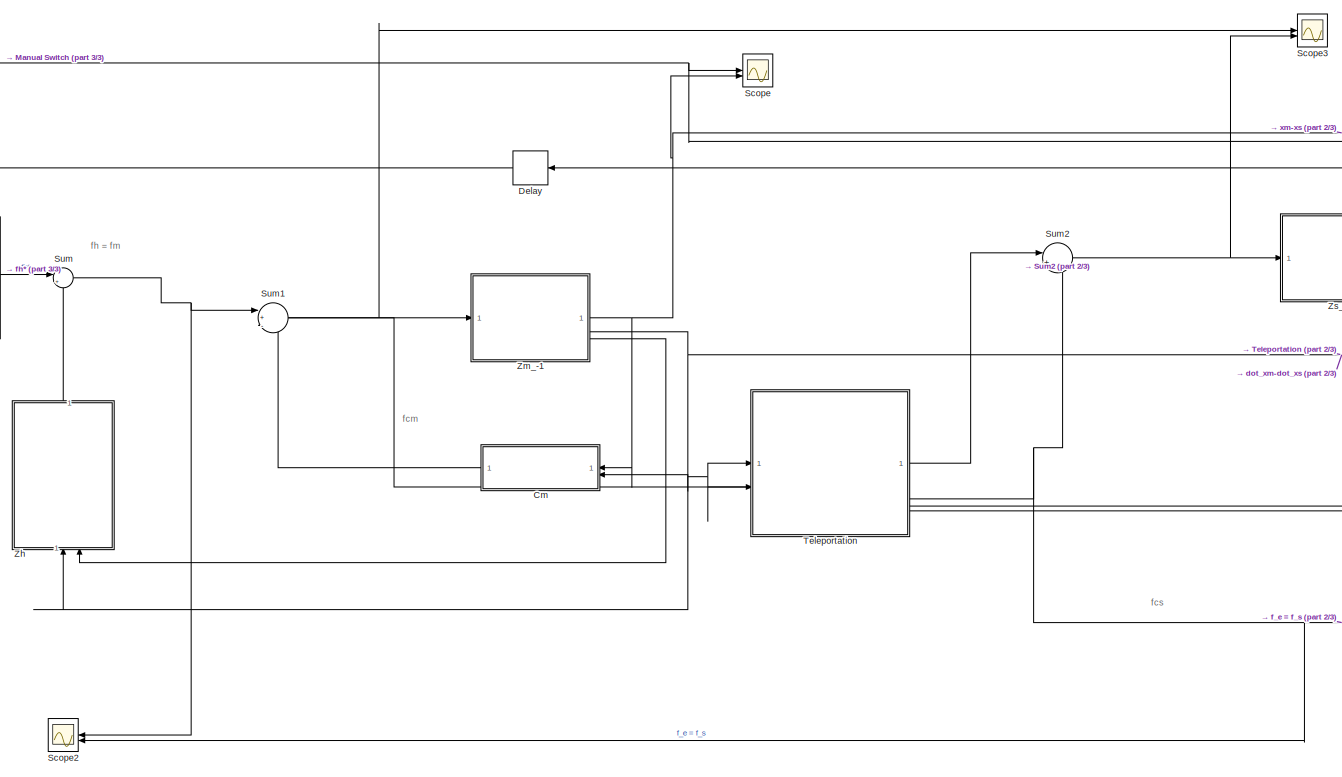
[diagram: root canvas - part 1/3, center side, full height]
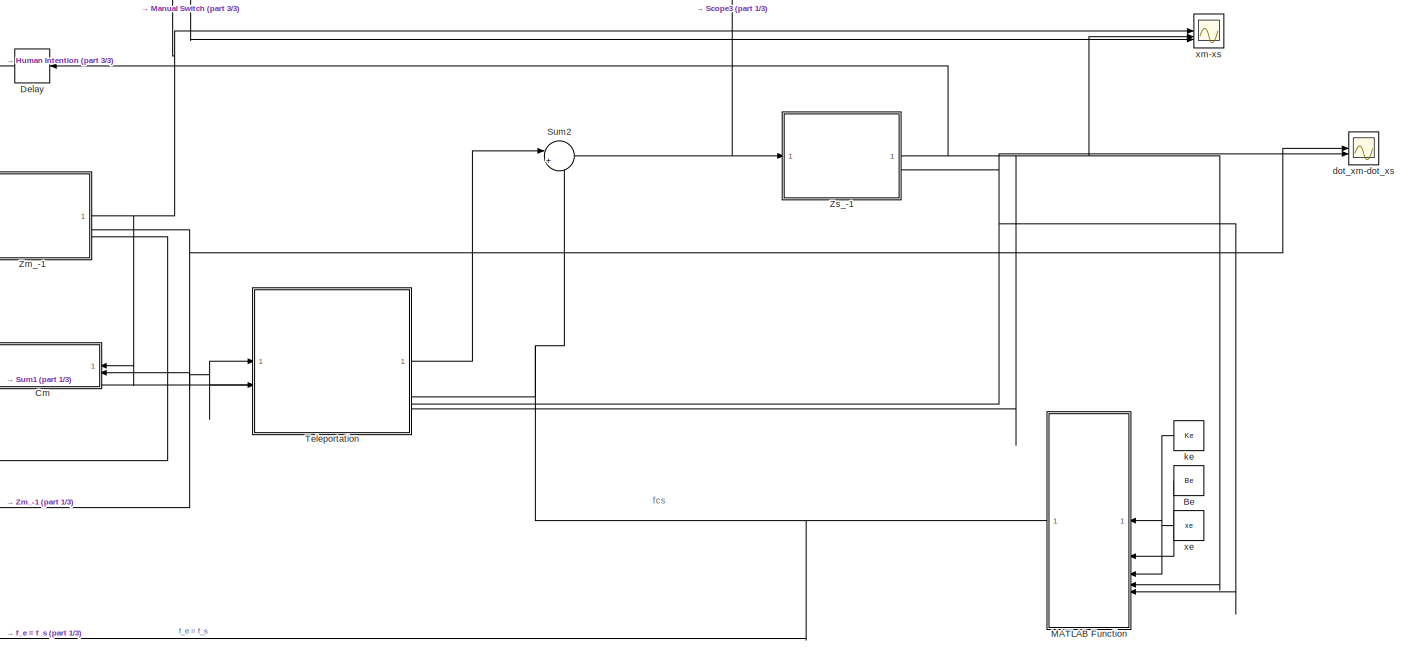
[diagram: root canvas - part 2/3, right side, full height]
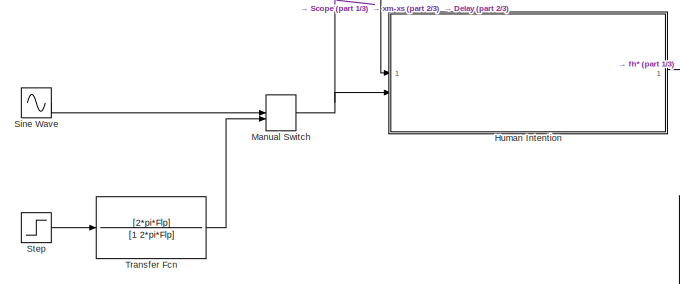
[diagram: root canvas - part 3/3, middle left region]
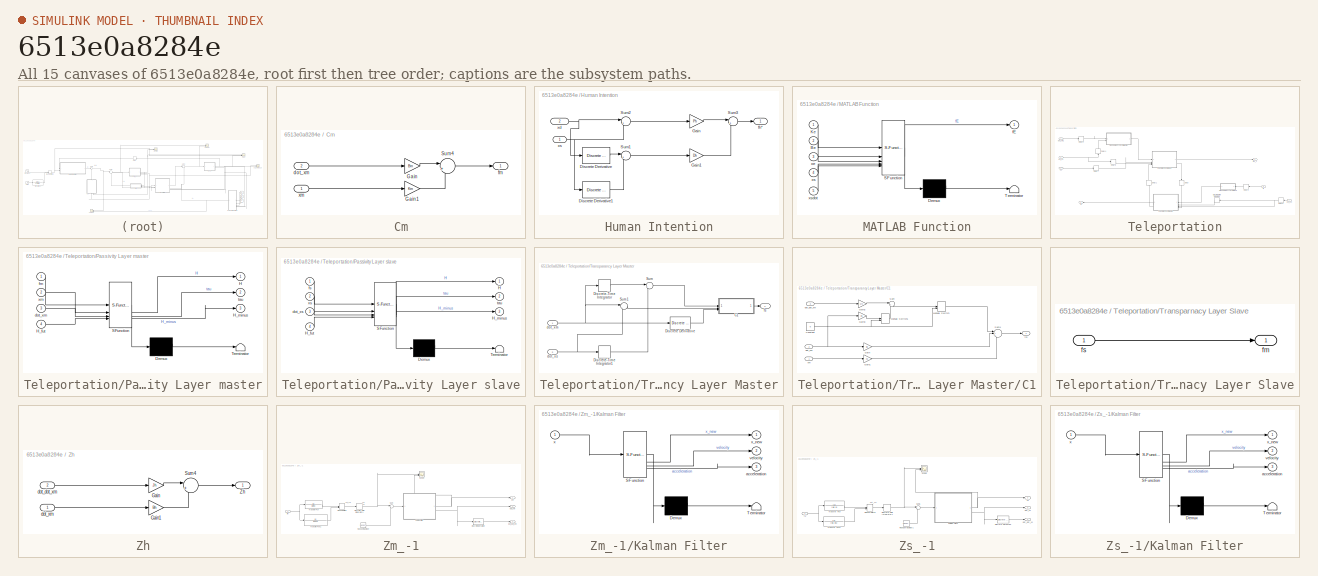
[diagram: thumbnail index - all 15 canvases of the model, root first then tree order]
MODEL slx_6513e0a8284e
KIND model
CONFIG AbsTol = auto
CONFIG EnableMultiTasking = off
CONFIG FixedStep = auto
CONFIG MaxStep = auto
CONFIG MinStep = auto
CONFIG RelTol = 1e-3
CONFIG SampleTimeConstraint = Unconstrained
CONFIG SolverName = VariableStepAuto
CONFIG StartTime = 0.0
CONFIG StopTime = 15
BLOCK [Constant] Be
  Value = Be
BLOCK [SubSystem] Cm
BLOCK [Gain] Cm/Gain
  Gain = Bm
BLOCK [Gain] Cm/Gain1
  Gain = Km
BLOCK [Sum] Cm/Sum4
  Inputs = |++
BLOCK [Inport] Cm/dot_xm
  Port = 2
BLOCK [Outport] Cm/fm
BLOCK [Inport] Cm/xm
BLOCK [Delay] Delay
  DelayLength = delay
  InputPortMap = u0
  SampleTime = Ts
BLOCK [SubSystem] Human Intention
BLOCK [Reference] Human Intention/Discrete Derivative  REF=simulink/Discrete/Discrete Derivative
  SourceBlock = simulink/Discrete/Discrete Derivative
  SourceType = Discrete Derivative
BLOCK [Reference] Human Intention/Discrete Derivative1  REF=simulink/Discrete/Discrete Derivative
  SourceBlock = simulink/Discrete/Discrete Derivative
  SourceType = Discrete Derivative
BLOCK [Gain] Human Intention/Gain
  Gain = Ph
BLOCK [Gain] Human Intention/Gain1
  Gain = Dh
BLOCK [Sum] Human Intention/Sum1
  Inputs = |+-
BLOCK [Sum] Human Intention/Sum2
  Inputs = |+-
BLOCK [Sum] Human Intention/Sum3
  Inputs = |++
BLOCK [Outport] Human Intention/fh*
BLOCK [Inport] Human Intention/xd
  Port = 2
BLOCK [Inport] Human Intention/xs
BLOCK [SubSystem] MATLAB Function
  ErrorFcn = Stateflow.Translate.translate
  PermitHierarchicalResolution = ExplicitOnly
  SFBlockType = MATLAB Function
  TreatAsAtomicUnit = on
BLOCK [Demux] MATLAB Function/ Demux 
  Outputs = 1
BLOCK [S-Function] MATLAB Function/ SFunction 
  EnableBusSupport = on
  FunctionName = sf_sfun
  PortCounts = [5 2]
  SFcnIsStateOwnerBlock = off
  SFunctionDeploymentMode = off
  Tag = Stateflow S-Function 2
BLOCK [Terminator] MATLAB Function/ Terminator 
BLOCK [Inport] MATLAB Function/Be
  Port = 2
BLOCK [Inport] MATLAB Function/Ke
BLOCK [Outport] MATLAB Function/fE
BLOCK [Inport] MATLAB Function/xe
  Port = 3
BLOCK [Inport] MATLAB Function/xs
  Port = 4
BLOCK [Inport] MATLAB Function/xsdot
  Port = 5
BLOCK [ManualSwitch] Manual Switch
BLOCK [Scope] Scope
  Floating = off
  NumInputPorts = 2
  ScopeSpecificationString = Simulink.scopes.TimeScopeBlockCfg('CurrentConfiguration', extmgr.ConfigurationSet(extmgr.Configuration('Core','General UI',true),extmgr.Configuration('Core','Source UI',true),extmgr.Configuration('Sources','WiredSimulink',true),extmgr.Configuration('Visuals','Time Domain',true,'SerializedDisplays',{struct('MinYLimReal','-19.56127','MaxYLimReal','26.05147','YLabelReal','','MinYLimMag','0.00000','Ma...<+1513ch>
BLOCK [Scope] Scope2
  Floating = off
  NumInputPorts = 2
  ScopeSpecificationString = Simulink.scopes.TimeScopeBlockCfg('CurrentConfiguration', extmgr.ConfigurationSet(extmgr.Configuration('Core','General UI',true),extmgr.Configuration('Core','Source UI',true),extmgr.Configuration('Sources','WiredSimulink',true,'DataLoggingVariableName','ScopeData2'),extmgr.Configuration('Visuals','Time Domain',true,'SerializedDisplays',{struct('MinYLimReal','-9069.05231','MaxYLimReal','11720.53116...<+1591ch>
BLOCK [Scope] Scope3
  Floating = off
  NumInputPorts = 2
  ScopeSpecificationString = Simulink.scopes.TimeScopeBlockCfg('CurrentConfiguration', extmgr.ConfigurationSet(extmgr.Configuration('Core','General UI',true),extmgr.Configuration('Core','Source UI',true),extmgr.Configuration('Sources','WiredSimulink',true,'DataLoggingVariableName','ScopeData1'),extmgr.Configuration('Visuals','Time Domain',true,'SerializedDisplays',{struct('MinYLimReal','-20349.54623','MaxYLimReal','7846.10159...<+1574ch>
BLOCK [Sin] Sine Wave
  Amplitude = Amp
  Frequency = 2*pi*Fc
  SampleTime = Ts
BLOCK [Step] Step
  After = Amp
  SampleTime = Ts
  Time = 0.5
BLOCK [Sum] Sum
  Inputs = |+-
BLOCK [Sum] Sum1
  Inputs = |+--
BLOCK [Sum] Sum2
  Inputs = |+-
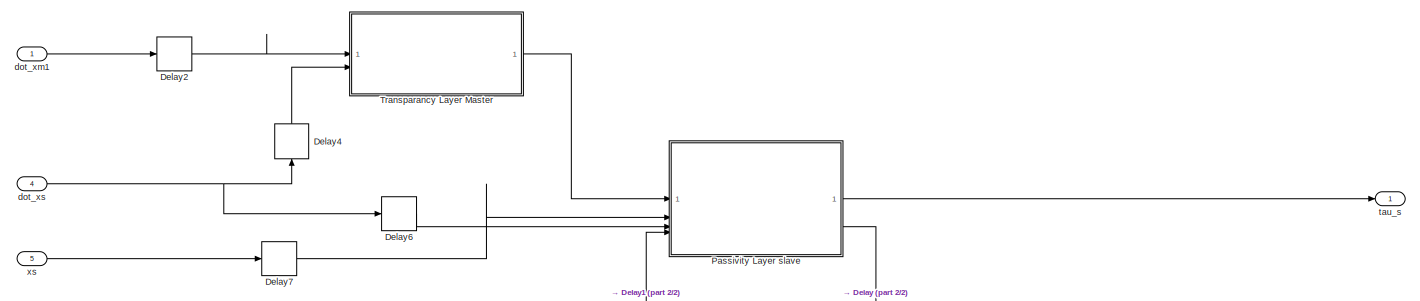
[diagram: Teleportation - part 1/2, full width, top band]
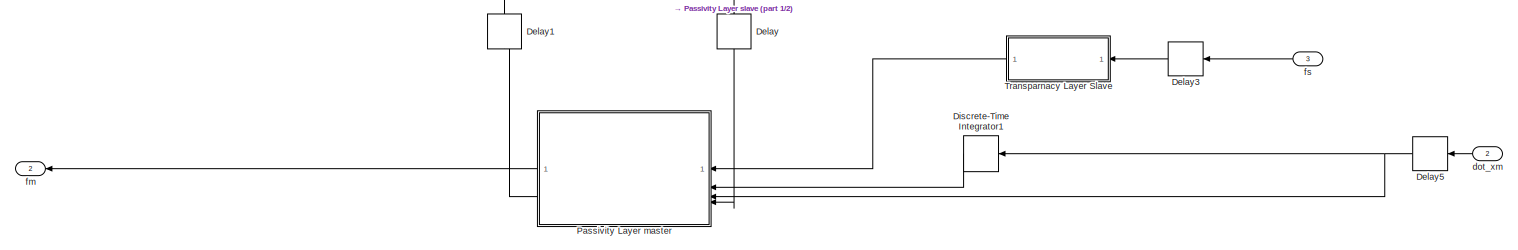
[diagram: Teleportation - part 2/2, full width, bottom band]
BLOCK [SubSystem] Teleportation
  PortSchema = {"entries":[{"content":{"sides":[{"content":{"connectorIds":["Out2","In1","In2"]},"type":"ConnectorPlacement.EquallySpacedRectSide","uuid":"b5f7abc7-c75d-4363-a17a-8f86c90608cd"},{"content":{"connectorIds":["Out1","In3","In4","In5"],"side":"RIGHT"},"type":"ConnectorPlacement.EquallySpacedRectSide","uuid":"2ed87bee-e320-4c73-a1d3-1960a55b558d"},{"content":{"connectorIds":[],"side":"TOP"},"type":"Co...<+271ch>
BLOCK [Delay] Teleportation/Delay
  DelayLength = delay
  InputPortMap = u0
  NameLocation = left
BLOCK [Delay] Teleportation/Delay1
  DelayLength = delay
  InputPortMap = u0
  NameLocation = left
BLOCK [Delay] Teleportation/Delay2
  DelayLength = delay
  InputPortMap = u0
BLOCK [Delay] Teleportation/Delay3
  DelayLength = delay
  InputPortMap = u0
  NameLocation = top
BLOCK [Delay] Teleportation/Delay4
  DelayLength = delay
  InputPortMap = u0
  NameLocation = right
BLOCK [Delay] Teleportation/Delay5
  DelayLength = delay
  InputPortMap = u0
BLOCK [Delay] Teleportation/Delay6
  DelayLength = delay
  InputPortMap = u0
BLOCK [Delay] Teleportation/Delay7
  DelayLength = delay
  InputPortMap = u0
BLOCK [DiscreteIntegrator] Teleportation/Discrete-Time Integrator1
  ICPrevOutput = DiscIntNeverNeededParam
  ICPrevScaledInput = DiscIntNeverNeededParam
  InitialConditionSetting = Auto
  SampleTime = -1
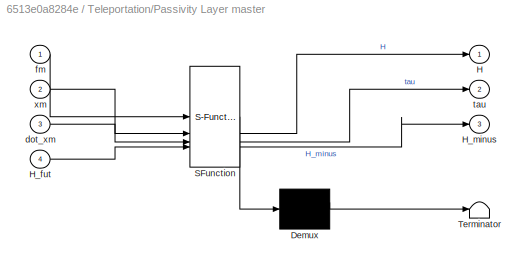
BLOCK [SubSystem] Teleportation/Passivity Layer master
  ErrorFcn = Stateflow.Translate.translate
  LibrarySourceBlock = simulink/User-Defined\nFunctions/MATLAB Function
  PermitHierarchicalResolution = ExplicitOnly
  SFBlockType = MATLAB Function
  TreatAsAtomicUnit = on
BLOCK [Demux] Teleportation/Passivity Layer master/ Demux 
  Outputs = 1
BLOCK [S-Function] Teleportation/Passivity Layer master/ SFunction 
  EnableBusSupport = on
  FunctionName = sf_sfun
  Parameters = Hd,Hm_init,Ts,alpha,beta
  PortCounts = [4 4]
  SFcnIsStateOwnerBlock = off
  SFunctionDeploymentMode = off
  Tag = Stateflow S-Function 4
BLOCK [Terminator] Teleportation/Passivity Layer master/ Terminator 
BLOCK [Outport] Teleportation/Passivity Layer master/H
BLOCK [Inport] Teleportation/Passivity Layer master/H_fut
  Port = 4
BLOCK [Outport] Teleportation/Passivity Layer master/H_minus
  Port = 3
BLOCK [Inport] Teleportation/Passivity Layer master/dot_xm
  Port = 3
BLOCK [Inport] Teleportation/Passivity Layer master/fm
BLOCK [Outport] Teleportation/Passivity Layer master/tau
  Port = 2
BLOCK [Inport] Teleportation/Passivity Layer master/xm
  Port = 2
BLOCK [SubSystem] Teleportation/Passivity Layer slave
  ErrorFcn = Stateflow.Translate.translate
  LibrarySourceBlock = simulink/User-Defined\nFunctions/MATLAB Function
  PermitHierarchicalResolution = ExplicitOnly
  SFBlockType = MATLAB Function
  TreatAsAtomicUnit = on
BLOCK [Demux] Teleportation/Passivity Layer slave/ Demux 
  Outputs = 1
BLOCK [S-Function] Teleportation/Passivity Layer slave/ SFunction 
  EnableBusSupport = on
  FunctionName = sf_sfun
  Parameters = Hs_init,Ts,beta
  PortCounts = [4 4]
  SFcnIsStateOwnerBlock = off
  SFunctionDeploymentMode = off
  Tag = Stateflow S-Function 1
BLOCK [Terminator] Teleportation/Passivity Layer slave/ Terminator 
BLOCK [Outport] Teleportation/Passivity Layer slave/H
BLOCK [Inport] Teleportation/Passivity Layer slave/H_fut
  Port = 4
BLOCK [Outport] Teleportation/Passivity Layer slave/H_minus
  Port = 3
BLOCK [Inport] Teleportation/Passivity Layer slave/dot_xs
  Port = 3
BLOCK [Inport] Teleportation/Passivity Layer slave/fs
BLOCK [Outport] Teleportation/Passivity Layer slave/tau
  Port = 2
BLOCK [Inport] Teleportation/Passivity Layer slave/xs
  Port = 2
BLOCK [SubSystem] Teleportation/Transparancy Layer Master
BLOCK [SubSystem] Teleportation/Transparancy Layer Master/C1
BLOCK [Constant] Teleportation/Transparancy Layer Master/C1/Constant
  Value = 0
BLOCK [Gain] Teleportation/Transparancy Layer Master/C1/Gain
  Gain = Bs
BLOCK [Gain] Teleportation/Transparancy Layer Master/C1/Gain1
  Gain = Ks
BLOCK [Gain] Teleportation/Transparancy Layer Master/C1/Gain2
  Gain = Ms
BLOCK [Gain] Teleportation/Transparancy Layer Master/C1/Gain3
  Gain = Ds
BLOCK [ManualSwitch] Teleportation/Transparancy Layer Master/C1/Manual Switch
BLOCK [ManualSwitch] Teleportation/Transparancy Layer Master/C1/Manual Switch1
BLOCK [Sum] Teleportation/Transparancy Layer Master/C1/Sum
  Inputs = |++
BLOCK [Sum] Teleportation/Transparancy Layer Master/C1/Sum4
  Inputs = |+++
BLOCK [Inport] Teleportation/Transparancy Layer Master/C1/dot_dot_xm
  Port = 3
BLOCK [Inport] Teleportation/Transparancy Layer Master/C1/dot_xm
  Port = 2
BLOCK [Outport] Teleportation/Transparancy Layer Master/C1/fm
BLOCK [Inport] Teleportation/Transparancy Layer Master/C1/xm
BLOCK [Reference] Teleportation/Transparancy Layer Master/Discrete Derivative  REF=simulink/Discrete/Discrete Derivative
  SourceBlock = simulink/Discrete/Discrete Derivative
  SourceType = Discrete Derivative
BLOCK [DiscreteIntegrator] Teleportation/Transparancy Layer Master/Discrete-Time Integrator
  ICPrevOutput = DiscIntNeverNeededParam
  ICPrevScaledInput = DiscIntNeverNeededParam
  InitialConditionSetting = Auto
  SampleTime = Ts
BLOCK [DiscreteIntegrator] Teleportation/Transparancy Layer Master/Discrete-Time Integrator1
  ICPrevOutput = DiscIntNeverNeededParam
  ICPrevScaledInput = DiscIntNeverNeededParam
  InitialConditionSetting = Auto
  SampleTime = Ts
BLOCK [Sum] Teleportation/Transparancy Layer Master/Sum
  Inputs = |+-
BLOCK [Sum] Teleportation/Transparancy Layer Master/Sum1
  Inputs = |+-
BLOCK [Inport] Teleportation/Transparancy Layer Master/dot_xm
BLOCK [Inport] Teleportation/Transparancy Layer Master/dot_xs
  Port = 2
BLOCK [Outport] Teleportation/Transparancy Layer Master/fs
BLOCK [SubSystem] Teleportation/Transparnacy Layer Slave
BLOCK [Outport] Teleportation/Transparnacy Layer Slave/fm
BLOCK [Inport] Teleportation/Transparnacy Layer Slave/fs
BLOCK [Inport] Teleportation/dot_xm
  Port = 2
BLOCK [Inport] Teleportation/dot_xm1
BLOCK [Inport] Teleportation/dot_xs
  Port = 4
BLOCK [Outport] Teleportation/fm
  Port = 2
BLOCK [Inport] Teleportation/fs
  Port = 3
BLOCK [Outport] Teleportation/tau_s
BLOCK [Inport] Teleportation/xs
  Port = 5
BLOCK [TransferFcn] Transfer Fcn
  Denominator = [1 2*pi*Flp]
  Numerator = [2*pi*Flp]
BLOCK [SubSystem] Zh
  NameLocation = right
BLOCK [Gain] Zh/Gain
  Gain = Jh
BLOCK [Gain] Zh/Gain1
  Gain = Bh
BLOCK [Sum] Zh/Sum4
  Inputs = |++
BLOCK [Outport] Zh/Zh
BLOCK [Inport] Zh/dot_dot_xm
  Port = 2
BLOCK [Inport] Zh/dot_xm
BLOCK [SubSystem] Zm_-1
BLOCK [Reference] Zm_-1/Discrete Derivative  REF=simulink/Discrete/Discrete Derivative
  SourceBlock = simulink/Discrete/Discrete Derivative
  SourceType = Discrete Derivative
BLOCK [DiscreteIntegrator] Zm_-1/Discrete-Time Integrator1
  ICPrevOutput = DiscIntNeverNeededParam
  ICPrevScaledInput = DiscIntNeverNeededParam
  InitialConditionSetting = Auto
  SampleTime = Ts
BLOCK [SubSystem] Zm_-1/Kalman Filter
  ErrorFcn = Stateflow.Translate.translate
  LibrarySourceBlock = simulink/User-Defined\nFunctions/MATLAB Function
  PermitHierarchicalResolution = ExplicitOnly
  SFBlockType = MATLAB Function
  TreatAsAtomicUnit = on
BLOCK [Demux] Zm_-1/Kalman Filter/ Demux 
  Outputs = 1
BLOCK [S-Function] Zm_-1/Kalman Filter/ SFunction 
  EnableBusSupport = on
  FunctionName = sf_sfun
  Parameters = paramsKalman
  PortCounts = [1 4]
  SFcnIsStateOwnerBlock = off
  SFunctionDeploymentMode = off
  Tag = Stateflow S-Function 3
BLOCK [Terminator] Zm_-1/Kalman Filter/ Terminator 
BLOCK [Outport] Zm_-1/Kalman Filter/acceleration
  Port = 3
BLOCK [Outport] Zm_-1/Kalman Filter/velocity
  Port = 2
BLOCK [Inport] Zm_-1/Kalman Filter/x
BLOCK [Outport] Zm_-1/Kalman Filter/x_new
BLOCK [ManualSwitch] Zm_-1/Manual Switch
  CurrentSetting = 0
BLOCK [RandomNumber] Zm_-1/Random Number
  SampleTime = Ts
  Variance = variance
BLOCK [Scope] Zm_-1/Scope
  Floating = off
  NumInputPorts = 2
  ScopeSpecificationString = Simulink.scopes.TimeScopeBlockCfg('CurrentConfiguration', extmgr.ConfigurationSet(extmgr.Configuration('Core','General UI',true),extmgr.Configuration('Core','Source UI',true),extmgr.Configuration('Sources','WiredSimulink',true,'DataLoggingVariableName','ScopeData1'),extmgr.Configuration('Visuals','Time Domain',true,'SerializedDisplays',{struct('MinYLimReal','-35566635647145617017481230750701655403...<+3864ch>
BLOCK [Sum] Zm_-1/Sum
  Inputs = |++
BLOCK [TransferFcn] Zm_-1/Transfer Fcn
  Denominator = [Mm 0]
BLOCK [TransferFcn] Zm_-1/Transfer Fcn1
  Denominator = [Mm Dm]
BLOCK [Outport] Zm_-1/dot_dot_xm
  Port = 3
BLOCK [Outport] Zm_-1/dot_xm
  Port = 2
BLOCK [Inport] Zm_-1/fm
BLOCK [Outport] Zm_-1/xm
BLOCK [SubSystem] Zs_-1
BLOCK [Reference] Zs_-1/Discrete Derivative  REF=simulink/Discrete/Discrete Derivative
  SourceBlock = simulink/Discrete/Discrete Derivative
  SourceType = Discrete Derivative
BLOCK [DiscreteIntegrator] Zs_-1/Discrete-Time Integrator1
  ICPrevOutput = DiscIntNeverNeededParam
  ICPrevScaledInput = DiscIntNeverNeededParam
  InitialConditionSetting = Auto
  SampleTime = Ts
BLOCK [SubSystem] Zs_-1/Kalman Filter
  ErrorFcn = Stateflow.Translate.translate
  LibrarySourceBlock = simulink/User-Defined\nFunctions/MATLAB Function
  PermitHierarchicalResolution = ExplicitOnly
  SFBlockType = MATLAB Function
  TreatAsAtomicUnit = on
BLOCK [Demux] Zs_-1/Kalman Filter/ Demux 
  Outputs = 1
BLOCK [S-Function] Zs_-1/Kalman Filter/ SFunction 
  EnableBusSupport = on
  FunctionName = sf_sfun
  Parameters = paramsKalman
  PortCounts = [1 4]
  SFcnIsStateOwnerBlock = off
  SFunctionDeploymentMode = off
  Tag = Stateflow S-Function 5
BLOCK [Terminator] Zs_-1/Kalman Filter/ Terminator 
BLOCK [Outport] Zs_-1/Kalman Filter/acceleration
  Port = 3
BLOCK [Outport] Zs_-1/Kalman Filter/velocity
  Port = 2
BLOCK [Inport] Zs_-1/Kalman Filter/x
BLOCK [Outport] Zs_-1/Kalman Filter/x_new
BLOCK [ManualSwitch] Zs_-1/Manual Switch
  CurrentSetting = 0
BLOCK [RandomNumber] Zs_-1/Random Number1
  SampleTime = Ts
  Variance = variance
BLOCK [Scope] Zs_-1/Scope
  Floating = off
  NumInputPorts = 2
  ScopeSpecificationString = Simulink.scopes.TimeScopeBlockCfg('CurrentConfiguration', extmgr.ConfigurationSet(extmgr.Configuration('Core','General UI',true),extmgr.Configuration('Core','Source UI',true),extmgr.Configuration('Sources','WiredSimulink',true,'DataLoggingVariableName','ScopeData2'),extmgr.Configuration('Visuals','Time Domain',true,'SerializedDisplays',{struct('MinYLimReal','-0.42203','MaxYLimReal','3.79631','YLab...<+1478ch>
BLOCK [Sum] Zs_-1/Sum1
  Inputs = |++
BLOCK [TransferFcn] Zs_-1/Transfer Fcn
  Denominator = [Ms 0]
BLOCK [TransferFcn] Zs_-1/Transfer Fcn1
  Denominator = [Ms Ds]
BLOCK [Outport] Zs_-1/dot_dot_xs
BLOCK [Outport] Zs_-1/dot_xs
  Port = 3
BLOCK [Inport] Zs_-1/fs
BLOCK [Outport] Zs_-1/xs
  Port = 2
BLOCK [Scope] dot_xm-dot_xs
  Floating = off
  NumInputPorts = 2
  ScopeSpecificationString = Simulink.scopes.TimeScopeBlockCfg('CurrentConfiguration', extmgr.ConfigurationSet(extmgr.Configuration('Core','General UI',true),extmgr.Configuration('Core','Source UI',true),extmgr.Configuration('Sources','WiredSimulink',true,'DataLoggingVariableName','ScopeData1'),extmgr.Configuration('Visuals','Time Domain',true,'SerializedDisplays',{struct('MinYLimReal','-73.95765','MaxYLimReal','212.28128','Y...<+1578ch>
BLOCK [Constant] ke
  Value = Ke
BLOCK [Constant] xe
  Value = xe
BLOCK [Scope] xm-xs
  Floating = off
  NumInputPorts = 3
  ScopeSpecificationString = Simulink.scopes.TimeScopeBlockCfg('CurrentConfiguration', extmgr.ConfigurationSet(extmgr.Configuration('Core','General UI',true),extmgr.Configuration('Core','Source UI',true),extmgr.Configuration('Sources','WiredSimulink',true,'DataLoggingVariableName','ScopeData1'),extmgr.Configuration('Visuals','Time Domain',true,'SerializedDisplays',{struct('MinYLimReal','-42.37792','MaxYLimReal','97.793','YLab...<+1741ch>
ANNOTATION (root): fcm
ANNOTATION (root): fcs
ANNOTATION (root): fh = fm
ANNOTATION Zm_-1: dot_xm
ANNOTATION Zm_-1: xm xm
ANNOTATION Zs_-1: dot_xm
LINE Be:1 -> MATLAB Function:2
LINE Cm/Gain1:1 -> Cm/Sum4:2
LINE Cm/Gain:1 -> Cm/Sum4:1
LINE Cm/Sum4:1 -> Cm/fm:1
LINE Cm/dot_xm:1 -> Cm/Gain:1
LINE Cm/xm:1 -> Cm/Gain1:1
LINE Cm:1 -> Sum1:3
LINE Delay:1 -> Human Intention:1
LINE Human Intention/Discrete Derivative1:1 -> Human Intention/Sum1:2
LINE Human Intention/Discrete Derivative:1 -> Human Intention/Sum1:1
LINE Human Intention/Gain1:1 -> Human Intention/Sum3:2
LINE Human Intention/Gain:1 -> Human Intention/Sum3:1
LINE Human Intention/Sum1:1 -> Human Intention/Gain1:1
LINE Human Intention/Sum2:1 -> Human Intention/Gain:1
LINE Human Intention/Sum3:1 -> Human Intention/fh*:1
NET Human Intention/xd:1 -> Human Intention/Discrete Derivative:1, Human Intention/Sum2:1
NET Human Intention/xs:1 -> Human Intention/Discrete Derivative1:1, Human Intention/Sum2:2
LINE Human Intention:1 -> Sum:1
NET MATLAB Function:1 -> Scope2:2, Sum2:2, Teleportation:3
NET Manual Switch:1 -> Human Intention:2, Scope:1, xm-xs:3
LINE Sine Wave:1 -> Manual Switch:1
LINE Step:1 -> Transfer Fcn:1
NET Sum1:1 -> Scope3:1, Zm_-1:1
NET Sum2:1 -> Scope3:2, Zs_-1:1
NET Sum:1 -> Scope2:1, Sum1:1
LINE Teleportation/Delay1:1 -> Teleportation/Passivity Layer slave:4
LINE Teleportation/Delay2:1 -> Teleportation/Transparancy Layer Master:1
LINE Teleportation/Delay3:1 -> Teleportation/Transparnacy Layer Slave:1
LINE Teleportation/Delay4:1 -> Teleportation/Transparancy Layer Master:2
NET Teleportation/Delay5:1 -> Teleportation/Discrete-Time Integrator1:1, Teleportation/Passivity Layer master:3
LINE Teleportation/Delay6:1 -> Teleportation/Passivity Layer slave:3
LINE Teleportation/Delay7:1 -> Teleportation/Passivity Layer slave:2
LINE Teleportation/Delay:1 -> Teleportation/Passivity Layer master:4
LINE Teleportation/Discrete-Time Integrator1:1 -> Teleportation/Passivity Layer master:2
LINE Teleportation/Passivity Layer master:2 -> Teleportation/fm:1
LINE Teleportation/Passivity Layer master:3 -> Teleportation/Delay1:1
LINE Teleportation/Passivity Layer slave:2 -> Teleportation/tau_s:1
LINE Teleportation/Passivity Layer slave:3 -> Teleportation/Delay:1
NET Teleportation/Transparancy Layer Master/C1/Constant:1 -> Teleportation/Transparancy Layer Master/C1/Manual Switch1:2, Teleportation/Transparancy Layer Master/C1/Manual Switch:2
LINE Teleportation/Transparancy Layer Master/C1/Gain1:1 -> Teleportation/Transparancy Layer Master/C1/Sum4:3
LINE Teleportation/Transparancy Layer Master/C1/Gain2:1 -> Teleportation/Transparancy Layer Master/C1/Sum:1
LINE Teleportation/Transparancy Layer Master/C1/Gain3:1 -> Teleportation/Transparancy Layer Master/C1/Manual Switch1:1
LINE Teleportation/Transparancy Layer Master/C1/Gain:1 -> Teleportation/Transparancy Layer Master/C1/Sum4:2
LINE Teleportation/Transparancy Layer Master/C1/Manual Switch1:1 -> Teleportation/Transparancy Layer Master/C1/Sum:2
LINE Teleportation/Transparancy Layer Master/C1/Manual Switch:1 -> Teleportation/Transparancy Layer Master/C1/Sum4:1
LINE Teleportation/Transparancy Layer Master/C1/Sum4:1 -> Teleportation/Transparancy Layer Master/C1/fm:1
LINE Teleportation/Transparancy Layer Master/C1/Sum:1 -> Teleportation/Transparancy Layer Master/C1/Manual Switch:1
LINE Teleportation/Transparancy Layer Master/C1/dot_dot_xm:1 -> Teleportation/Transparancy Layer Master/C1/Gain2:1
NET Teleportation/Transparancy Layer Master/C1/dot_xm:1 -> Teleportation/Transparancy Layer Master/C1/Gain3:1, Teleportation/Transparancy Layer Master/C1/Gain:1
LINE Teleportation/Transparancy Layer Master/C1/xm:1 -> Teleportation/Transparancy Layer Master/C1/Gain1:1
LINE Teleportation/Transparancy Layer Master/C1:1 -> Teleportation/Transparancy Layer Master/fs:1
LINE Teleportation/Transparancy Layer Master/Discrete Derivative:1 -> Teleportation/Transparancy Layer Master/C1:3
LINE Teleportation/Transparancy Layer Master/Discrete-Time Integrator1:1 -> Teleportation/Transparancy Layer Master/Sum:2
LINE Teleportation/Transparancy Layer Master/Discrete-Time Integrator:1 -> Teleportation/Transparancy Layer Master/Sum:1
LINE Teleportation/Transparancy Layer Master/Sum1:1 -> Teleportation/Transparancy Layer Master/C1:2
LINE Teleportation/Transparancy Layer Master/Sum:1 -> Teleportation/Transparancy Layer Master/C1:1
NET Teleportation/Transparancy Layer Master/dot_xm:1 -> Teleportation/Transparancy Layer Master/Discrete Derivative:1, Teleportation/Transparancy Layer Master/Discrete-Time Integrator:1, Teleportation/Transparancy Layer Master/Sum1:1
NET Teleportation/Transparancy Layer Master/dot_xs:1 -> Teleportation/Transparancy Layer Master/Discrete-Time Integrator1:1, Teleportation/Transparancy Layer Master/Sum1:2
LINE Teleportation/Transparancy Layer Master:1 -> Teleportation/Passivity Layer slave:1
LINE Teleportation/Transparnacy Layer Slave/fs:1 -> Teleportation/Transparnacy Layer Slave/fm:1
LINE Teleportation/Transparnacy Layer Slave:1 -> Teleportation/Passivity Layer master:1
LINE Teleportation/dot_xm1:1 -> Teleportation/Delay2:1
LINE Teleportation/dot_xm:1 -> Teleportation/Delay5:1
NET Teleportation/dot_xs:1 -> Teleportation/Delay4:1, Teleportation/Delay6:1
LINE Teleportation/fs:1 -> Teleportation/Delay3:1
LINE Teleportation/xs:1 -> Teleportation/Delay7:1
LINE Teleportation:1 -> Sum2:1
LINE Teleportation:2 -> Sum1:2
LINE Transfer Fcn:1 -> Manual Switch:2
LINE Zh/Gain1:1 -> Zh/Sum4:2
LINE Zh/Gain:1 -> Zh/Sum4:1
LINE Zh/Sum4:1 -> Zh/Zh:1
LINE Zh/dot_dot_xm:1 -> Zh/Gain:1
LINE Zh/dot_xm:1 -> Zh/Gain1:1
LINE Zh:1 -> Sum:2
LINE Zm_-1/Discrete Derivative:1 -> Zm_-1/dot_dot_xm:1
NET Zm_-1/Discrete-Time Integrator1:1 -> Zm_-1/Scope:1, Zm_-1/Sum:1
NET Zm_-1/Kalman Filter:1 -> Zm_-1/Scope:2, Zm_-1/xm:1
NET Zm_-1/Kalman Filter:2 -> Zm_-1/Discrete Derivative:1, Zm_-1/dot_xm:1
LINE Zm_-1/Manual Switch:1 -> Zm_-1/Discrete-Time Integrator1:1
LINE Zm_-1/Random Number:1 -> Zm_-1/Sum:2
LINE Zm_-1/Sum:1 -> Zm_-1/Kalman Filter:1
LINE Zm_-1/Transfer Fcn1:1 -> Zm_-1/Manual Switch:2
LINE Zm_-1/Transfer Fcn:1 -> Zm_-1/Manual Switch:1
NET Zm_-1/fm:1 -> Zm_-1/Transfer Fcn1:1, Zm_-1/Transfer Fcn:1
NET Zm_-1:1 -> Cm:1, Scope:2, xm-xs:1
NET Zm_-1:2 -> Cm:2, Teleportation:1, Teleportation:2, Zh:1, dot_xm-dot_xs:1
LINE Zm_-1:3 -> Zh:2
LINE Zs_-1/Discrete Derivative:1 -> Zs_-1/dot_dot_xs:1
NET Zs_-1/Discrete-Time Integrator1:1 -> Zs_-1/Scope:1, Zs_-1/Sum1:1
NET Zs_-1/Kalman Filter:1 -> Zs_-1/Scope:2, Zs_-1/xs:1
NET Zs_-1/Kalman Filter:2 -> Zs_-1/Discrete Derivative:1, Zs_-1/dot_xs:1
LINE Zs_-1/Manual Switch:1 -> Zs_-1/Discrete-Time Integrator1:1
LINE Zs_-1/Random Number1:1 -> Zs_-1/Sum1:2
LINE Zs_-1/Sum1:1 -> Zs_-1/Kalman Filter:1
LINE Zs_-1/Transfer Fcn1:1 -> Zs_-1/Manual Switch:2
LINE Zs_-1/Transfer Fcn:1 -> Zs_-1/Manual Switch:1
NET Zs_-1/fs:1 -> Zs_-1/Transfer Fcn1:1, Zs_-1/Transfer Fcn:1
NET Zs_-1:1 -> Delay:1, MATLAB Function:4, Teleportation:5, xm-xs:2
NET Zs_-1:2 -> MATLAB Function:5, Teleportation:4, dot_xm-dot_xs:2
LINE ke:1 -> MATLAB Function:1
LINE xe:1 -> MATLAB Function:3
note: NET lines group one-source signal fan-out (src -> all destinations, sorted); 1:1 wires keep LINE
CHART Teleportation/Passivity Layer slave states=1 transitions=1
  STATE_LABEL 'eML_blk_kernel()'
  STATE_LABEL 'SCRIPT:\nfunction [H, tau, H_minus] = fcn(fs,xs,dot_xs,Hs_init, H_fut, Ts, beta)\n    persistent H_pre tau_pre xs_pre \n\n    if(isempty(H_pre))\n        H_pre = Hs_init;\n        tau_pre = 0;\n        xs_pre = 0;\n    end\n\n    delta_H = tau_pre * (xs - xs_pre);\n    H = H_pre + H_fut - delta_H;\n\n    if(H <= 0)\n        tau_max_1 = 0;\n    else\n        tau_max_1 = fs;\n    end\n\n    tau_max_2 = H/(dot_xs*Ts);\n...<+206ch>'
CHART MATLAB Function states=1 transitions=1
  STATE_LABEL 'eML_blk_kernel()'
  STATE_LABEL 'SCRIPT:\nfunction fE = environment(Ke, Be, xe, xs, xsdot)\n    if xs > xe\n        fE = Ke * (xs - xe) + Be * xsdot; % Plot both contributions Ke and Be\n    else\n        fE = 0;\n    end\nend\n'
CHART Zm_-1/Kalman Filter states=1 transitions=1
  STATE_LABEL 'eML_blk_kernel()'
  STATE_LABEL "SCRIPT:\nfunction [x_new, velocity, acceleration] = Kalman(x, paramsKalman)\n    persistent x_k_x P_k_km1;\n\n    if(isempty(x_k_x))\n       x_k_x = [x;0;0];\n       P_k_km1 = paramsKalman.P*eye(3);\n\n    end\n\n\n    P_kp1_k = paramsKalman.A*P_k_km1*paramsKalman.A' - paramsKalman.A*P_k_km1*paramsKalman.C'*pinv(paramsKalman.C*P_k_km1*paramsKalman.C'+paramsKalman.R)*paramsKalman.C*P_k_km1*paramsKalman.A'+par...<+343ch>"
CHART Teleportation/Passivity Layer master states=1 transitions=1
  STATE_LABEL 'eML_blk_kernel()'
  STATE_LABEL 'SCRIPT:\nfunction [H, tau, H_minus] = fcn(fm,xm,dot_xm,Hm_init, H_fut, Ts, beta, Hd, alpha)\n    persistent H_pre tau_pre xm_pre \n\n    if(isempty(H_pre))\n        H_pre = Hm_init;\n        tau_pre = 0;\n        xm_pre = 0;\n    end\n\n    delta_H = tau_pre * (xm - xm_pre);\n    H = H_pre + H_fut - delta_H;\n\n    if(H <= 0)\n        tau_max_1 = 0;\n    else\n        tau_max_1 = fm;\n    end\n\n    if(abs(dot_xm) <...<+443ch>'
CHART Zs_-1/Kalman Filter states=1 transitions=1
  STATE_LABEL 'eML_blk_kernel()'
  STATE_LABEL "SCRIPT:\nfunction [x_new, velocity, acceleration] = Kalman(x, paramsKalman)\n    persistent x_k_x P_k_km1;\n\n    if(isempty(x_k_x))\n       x_k_x = [x;0;0];\n       P_k_km1 = paramsKalman.P*eye(3);\n\n    end\n\n\n    P_kp1_k = paramsKalman.A*P_k_km1*paramsKalman.A' - paramsKalman.A*P_k_km1*paramsKalman.C'*pinv(paramsKalman.C*P_k_km1*paramsKalman.C'+paramsKalman.R)*paramsKalman.C*P_k_km1*paramsKalman.A'+par...<+343ch>"
CHART  states=0 transitions=0
CHART  states=0 transitions=0
CHART  states=0 transitions=0
CHART  states=0 transitions=0
CHART  states=0 transitions=0
